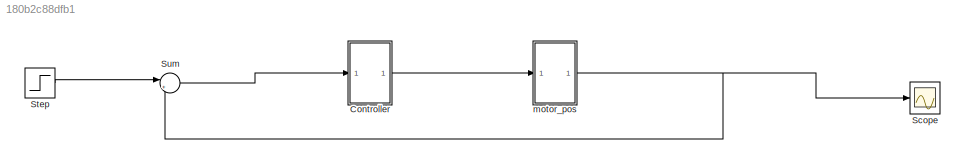
MODEL slx_180b2c88dfb1
KIND model
CONFIG AbsTol = auto
CONFIG EnableMultiTasking = off
CONFIG FixedStep = auto
CONFIG MaxStep = auto
CONFIG MinStep = auto
CONFIG RelTol = 1e-3
CONFIG SampleTimeConstraint = Unconstrained
CONFIG SolverName = VariableStepAuto
CONFIG StartTime = 0.0
CONFIG StopTime = 0.2
WORKSPACE source: mxarray member
WORKSPACE J: Simulink.Parameter (value not decoded)
WORKSPACE K: Simulink.Parameter (value not decoded)
WORKSPACE Kd: Simulink.Parameter (value not decoded)
WORKSPACE Ki: Simulink.Parameter (value not decoded)
WORKSPACE Kp: Simulink.Parameter (value not decoded)
WORKSPACE L: Simulink.Parameter (value not decoded)
WORKSPACE R: Simulink.Parameter (value not decoded)
WORKSPACE b: Simulink.Parameter (value not decoded)
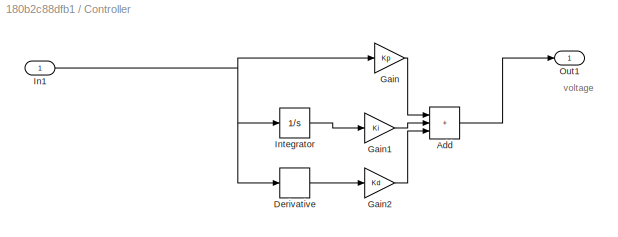
BLOCK [SubSystem] Controller
  Ports = [1, 1]
  RequestExecContextInheritance = off
BLOCK [Sum] Controller/Add
  IconShape = rectangular
  Inputs = +++
  Ports = [3, 1]
BLOCK [Derivative] Controller/Derivative
BLOCK [Gain] Controller/Gain
  Gain = Kp
BLOCK [Gain] Controller/Gain1
  Gain = Ki
BLOCK [Gain] Controller/Gain2
  Gain = Kd
BLOCK [Inport] Controller/In1
BLOCK [Integrator] Controller/Integrator
  Ports = [1, 1]
BLOCK [Outport] Controller/Out1
BLOCK [Scope] Scope
  Floating = off
  NumInputPorts = 1
  Ports = [1]
  ScopeSpecificationString = Simulink.scopes.TimeScopeBlockCfg('CurrentConfiguration', extmgr.ConfigurationSet(extmgr.Configuration('Core','General UI',true),extmgr.Configuration('Core','Source UI',true),extmgr.Configuration('Sources','WiredSimulink',true),extmgr.Configuration('Visuals','Time Domain',true,'SerializedDisplays',{struct('MinYLimReal','-0.000000000004','MaxYLimReal','0.000000000033','YLabelReal','','MinYLimMag','...<+1376ch>
BLOCK [Step] Step
  SampleTime = 0
BLOCK [Sum] Sum
  Inputs = |+-
  Ports = [2, 1]
BLOCK [ModelReference] motor_pos
  ModelNameDialog = motor_pos.slx
  ModelReferenceVersion = 1.3
  Ports = [1, 1]
ANNOTATION Controller: voltage
LINE Controller/Add:1 -> Controller/Out1:1
LINE Controller/Derivative:1 -> Controller/Gain2:1
LINE Controller/Gain1:1 -> Controller/Add:2
LINE Controller/Gain2:1 -> Controller/Add:3
LINE Controller/Gain:1 -> Controller/Add:1
NET Controller/In1:1 -> Controller/Derivative:1, Controller/Gain:1, Controller/Integrator:1
LINE Controller/Integrator:1 -> Controller/Gain1:1
LINE Controller:1 -> motor_pos:1
LINE Step:1 -> Sum:1
LINE Sum:1 -> Controller:1
NET motor_pos:1 -> Scope:1, Sum:2
note: NET lines group one-source signal fan-out (src -> all destinations, sorted); 1:1 wires keep LINE
